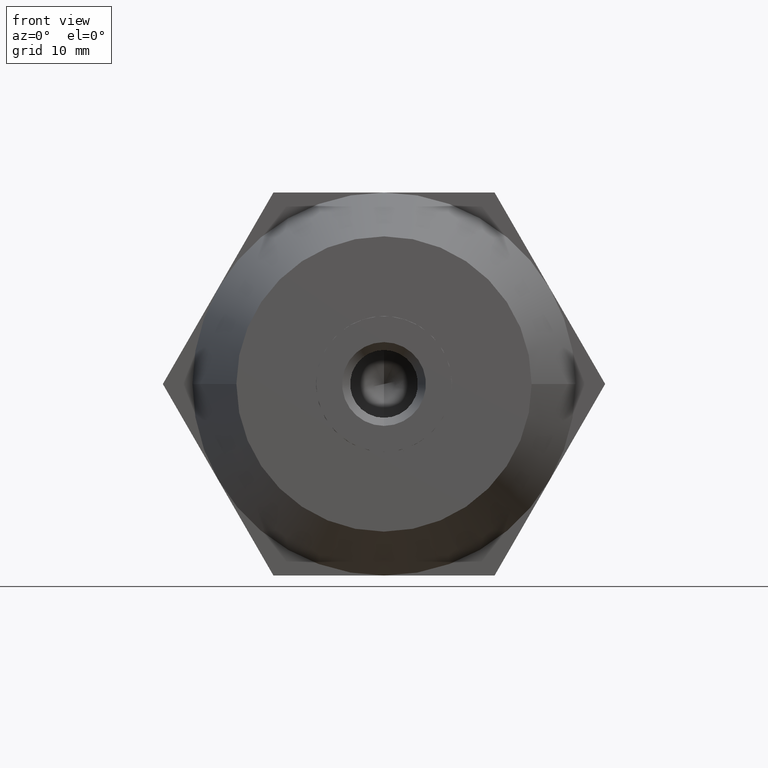
[diagram: clean part render]
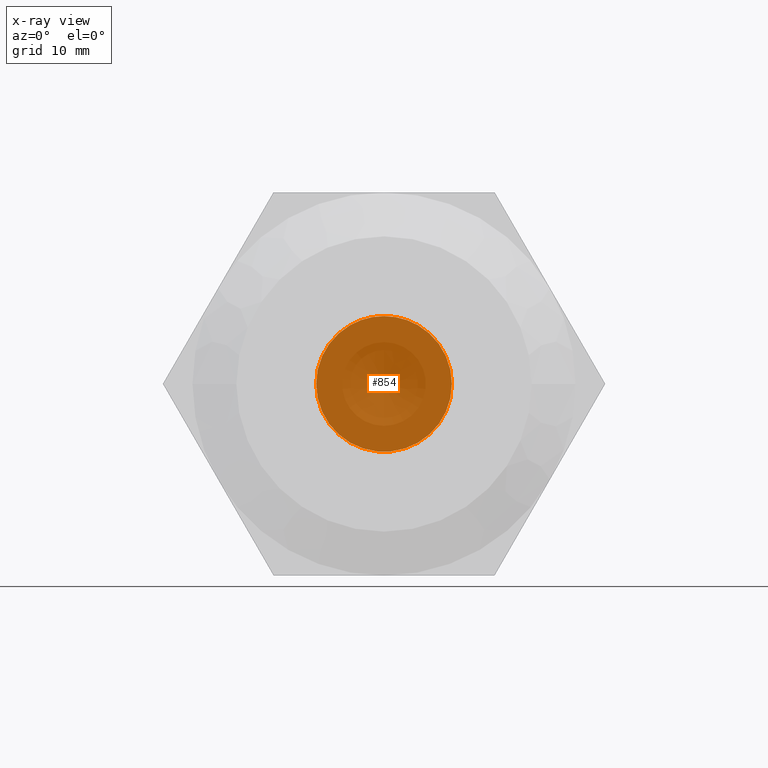
[diagram: x-ray — body ghosted, one internal face saturated and labeled with its STEP entity id]
A machine part, front view, then the same camera in x-ray: the body is ghosted and one INTERNAL B-rep face — a face not visible from any outside direction — is saturated and labeled: STEP entity #854.
In plain terms, the highlighted planar face has unit normal (0, 1, 0).
Its self-contained STEP definition (entity closure, byte-faithful):
#74 = DIRECTION ( 'NONE',  ( 0.0000000000000000000, 0.0000000000000000000, 1.000000000000000000 ) ) ;
#87 = ORIENTED_EDGE ( 'NONE', *, *, #3186, .F. ) ;
#251 = CARTESIAN_POINT ( 'NONE',  ( 0.0000000000000000000, 10.51000000000000000, 8.500000000000000000 ) ) ;
#280 = VERTEX_POINT ( 'NONE', #251 ) ;
#327 = ORIENTED_EDGE ( 'NONE', *, *, #2266, .F. ) ;
#434 = CIRCLE ( 'NONE', #963, 8.500000000000000000 ) ;
#444 = DIRECTION ( 'NONE',  ( -0.0000000000000000000, -1.000000000000000000, -0.0000000000000000000 ) ) ;
#455 = DIRECTION ( 'NONE',  ( -1.776356839400250500E-015, 0.0000000000000000000, 1.000000000000000000 ) ) ;
#482 = ORIENTED_EDGE ( 'NONE', *, *, #956, .F. ) ;
#497 = DIRECTION ( 'NONE',  ( -0.0000000000000000000, -1.000000000000000000, -0.0000000000000000000 ) ) ;
#600 = CARTESIAN_POINT ( 'NONE',  ( -8.500000000000000000, 10.51000000000000000, 0.0000000000000000000 ) ) ;
#667 = DIRECTION ( 'NONE',  ( -0.0000000000000000000, -1.000000000000000000, -0.0000000000000000000 ) ) ;
#821 = VERTEX_POINT ( 'NONE', #2905 ) ;
#841 = ORIENTED_EDGE ( 'NONE', *, *, #2422, .F. ) ;
#854 = ADVANCED_FACE ( 'NONE', ( #3101 ), #3272, .T. ) ;
#878 = VERTEX_POINT ( 'NONE', #2566 ) ;
#922 = CARTESIAN_POINT ( 'NONE',  ( -4.250000000000000000, 10.51000000000000000, 7.361215932167730200 ) ) ;
#923 = ORIENTED_EDGE ( 'NONE', *, *, #1726, .F. ) ;
#956 = EDGE_CURVE ( 'NONE', #2309, #821, #3824, .T. ) ;
#957 = DIRECTION ( 'NONE',  ( -0.0000000000000000000, -1.000000000000000000, -0.0000000000000000000 ) ) ;
#963 = AXIS2_PLACEMENT_3D ( 'NONE', #1548, #957, #1564 ) ;
#1065 = CIRCLE ( 'NONE', #1622, 8.500000000000000000 ) ;
#1196 = DIRECTION ( 'NONE',  ( 1.776356839400250500E-015, 0.0000000000000000000, 1.000000000000000000 ) ) ;
#1197 = ORIENTED_EDGE ( 'NONE', *, *, #3569, .F. ) ;
#1321 = VERTEX_POINT ( 'NONE', #600 ) ;
#1470 = VERTEX_POINT ( 'NONE', #922 ) ;
#1548 = CARTESIAN_POINT ( 'NONE',  ( 0.0000000000000000000, 10.51000000000000000, 0.0000000000000000000 ) ) ;
#1564 = DIRECTION ( 'NONE',  ( 1.776356839400250500E-015, 0.0000000000000000000, 1.000000000000000000 ) ) ;
#1613 = AXIS2_PLACEMENT_3D ( 'NONE', #2388, #2764, #1196 ) ;
#1622 = AXIS2_PLACEMENT_3D ( 'NONE', #2945, #497, #1995 ) ;
#1655 = EDGE_LOOP ( 'NONE', ( #1197, #841, #482, #327, #87, #2086, #923 ) ) ;
#1694 = DIRECTION ( 'NONE',  ( -0.0000000000000000000, -1.000000000000000000, -0.0000000000000000000 ) ) ;
#1712 = DIRECTION ( 'NONE',  ( 0.0000000000000000000, 1.000000000000000000, 0.0000000000000000000 ) ) ;
#1726 = EDGE_CURVE ( 'NONE', #280, #1470, #1065, .T. ) ;
#1740 = CARTESIAN_POINT ( 'NONE',  ( 0.0000000000000000000, 10.51000000000000000, 0.0000000000000000000 ) ) ;
#1747 = AXIS2_PLACEMENT_3D ( 'NONE', #2281, #444, #3841 ) ;
#1805 = VERTEX_POINT ( 'NONE', #2697 ) ;
#1861 = CIRCLE ( 'NONE', #2765, 8.500000000000000000 ) ;
#1895 = CARTESIAN_POINT ( 'NONE',  ( 0.0000000000000000000, 10.51000000000000000, 0.0000000000000000000 ) ) ;
#1995 = DIRECTION ( 'NONE',  ( 0.0000000000000000000, 0.0000000000000000000, 1.000000000000000000 ) ) ;
#2086 = ORIENTED_EDGE ( 'NONE', *, *, #2984, .F. ) ;
#2266 = EDGE_CURVE ( 'NONE', #1805, #2309, #3010, .T. ) ;
#2280 = DIRECTION ( 'NONE',  ( -0.0000000000000000000, -1.000000000000000000, -0.0000000000000000000 ) ) ;
#2281 = CARTESIAN_POINT ( 'NONE',  ( 0.0000000000000000000, 10.51000000000000000, 0.0000000000000000000 ) ) ;
#2309 = VERTEX_POINT ( 'NONE', #2628 ) ;
#2388 = CARTESIAN_POINT ( 'NONE',  ( 0.0000000000000000000, 10.51000000000000000, 0.0000000000000000000 ) ) ;
#2422 = EDGE_CURVE ( 'NONE', #821, #878, #2737, .T. ) ;
#2487 = DIRECTION ( 'NONE',  ( 0.0000000000000000000, 0.0000000000000000000, 1.000000000000000000 ) ) ;
#2566 = CARTESIAN_POINT ( 'NONE',  ( 4.249999999999940500, 10.50999999999895900, 7.361215932167770100 ) ) ;
#2617 = CARTESIAN_POINT ( 'NONE',  ( 0.0000000000000000000, 10.51000000000000000, 0.0000000000000000000 ) ) ;
#2628 = CARTESIAN_POINT ( 'NONE',  ( 4.250000000000060400, 10.50999999999895900, -7.361215932167689300 ) ) ;
#2697 = CARTESIAN_POINT ( 'NONE',  ( -4.249999999999935200, 10.50999999999895900, -7.361215932167759500 ) ) ;
#2737 = CIRCLE ( 'NONE', #1613, 8.500000000000000000 ) ;
#2764 = DIRECTION ( 'NONE',  ( -0.0000000000000000000, -1.000000000000000000, -0.0000000000000000000 ) ) ;
#2765 = AXIS2_PLACEMENT_3D ( 'NONE', #2617, #1694, #2924 ) ;
#2905 = CARTESIAN_POINT ( 'NONE',  ( 8.500000000000000000, 10.51000000000000000, -3.469446951953615000E-015 ) ) ;
#2924 = DIRECTION ( 'NONE',  ( 0.0000000000000000000, 0.0000000000000000000, 1.000000000000000000 ) ) ;
#2945 = CARTESIAN_POINT ( 'NONE',  ( 0.0000000000000000000, 10.51000000000000000, 0.0000000000000000000 ) ) ;
#2982 = AXIS2_PLACEMENT_3D ( 'NONE', #3839, #2280, #455 ) ;
#2984 = EDGE_CURVE ( 'NONE', #1470, #1321, #3322, .T. ) ;
#3010 = CIRCLE ( 'NONE', #1747, 8.500000000000000000 ) ;
#3101 = FACE_OUTER_BOUND ( 'NONE', #1655, .T. ) ;
#3186 = EDGE_CURVE ( 'NONE', #1321, #1805, #1861, .T. ) ;
#3272 = PLANE ( 'NONE',  #3674 ) ;
#3322 = CIRCLE ( 'NONE', #3329, 8.500000000000000000 ) ;
#3329 = AXIS2_PLACEMENT_3D ( 'NONE', #1895, #667, #74 ) ;
#3569 = EDGE_CURVE ( 'NONE', #878, #280, #434, .T. ) ;
#3674 = AXIS2_PLACEMENT_3D ( 'NONE', #1740, #1712, #2487 ) ;
#3824 = CIRCLE ( 'NONE', #2982, 8.500000000000000000 ) ;
#3839 = CARTESIAN_POINT ( 'NONE',  ( 0.0000000000000000000, 10.51000000000000000, 0.0000000000000000000 ) ) ;
#3841 = DIRECTION ( 'NONE',  ( 1.776356839400250500E-015, 0.0000000000000000000, 1.000000000000000000 ) ) ;